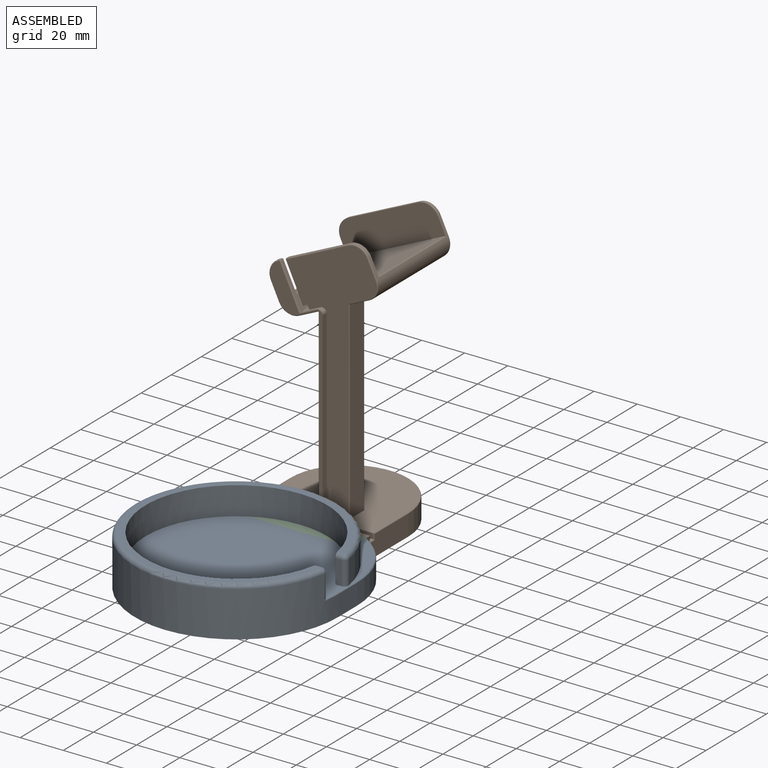
[diagram: assembled view]
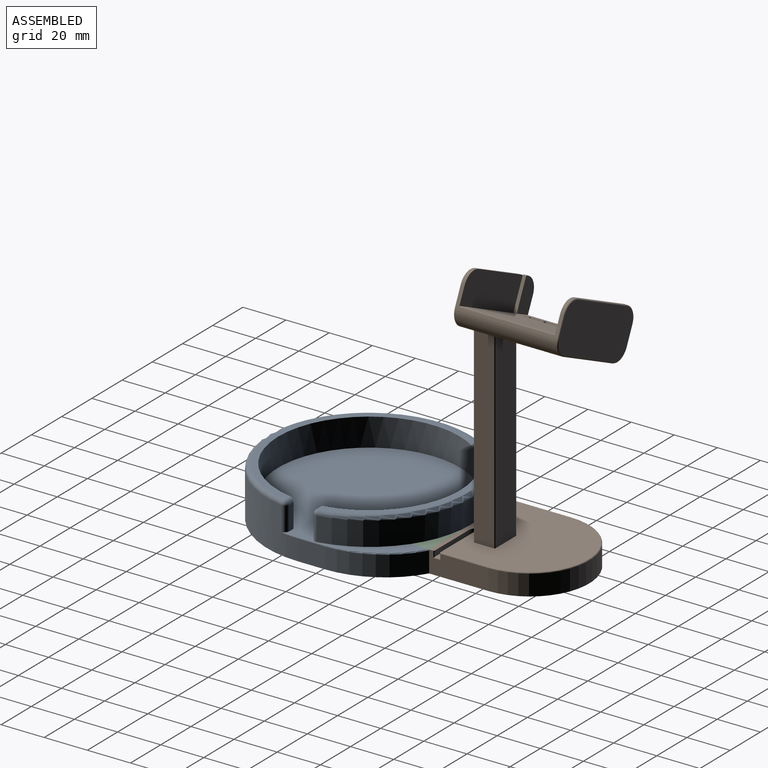
[diagram: assembled view, second angle]
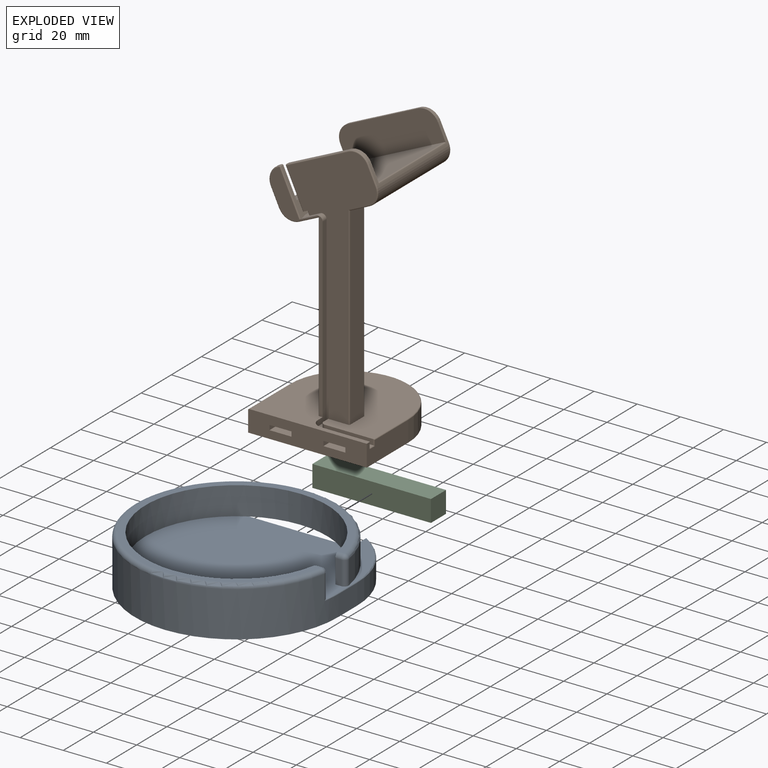
[diagram: exploded view]
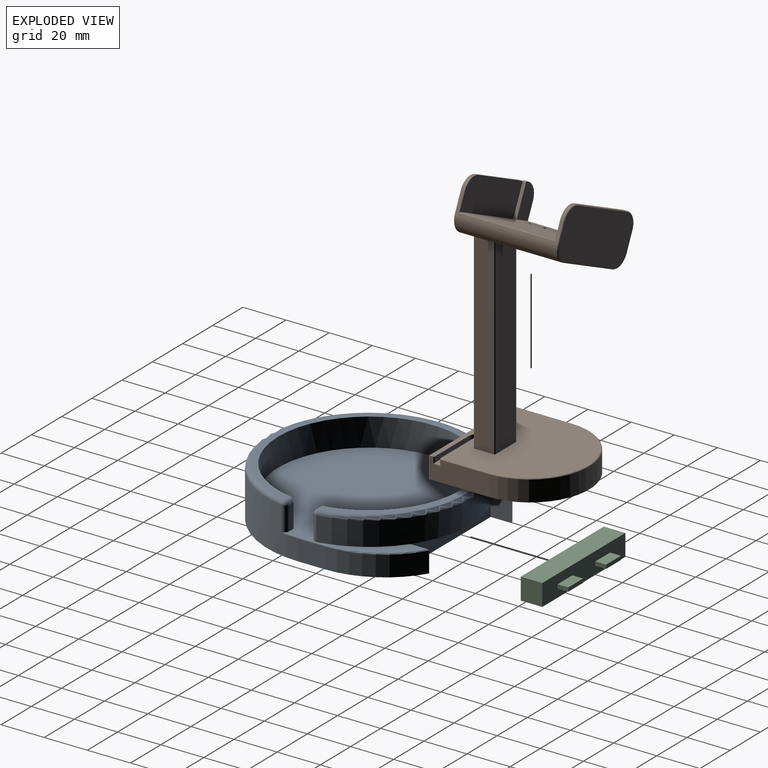
[diagram: exploded view, second angle]
ASSEMBLY  parts=3 mates=2
PART A: 30 faces, bbox 101.7x102.2x23.1 mm
  f0: cylinder r=42.17mm len=84.35mm, axis (0,0,-1), area 3289.9mm2, adj f5,f6,f8,f14,f15,f19,f22
  f1: plane 10x0.05mm, normal (1,0,0), area 0.5mm2, adj f4,f5,f10,f13
  f2: plane 39.64x19.18mm, normal (0,0,1), area 175.6mm2, adj f3,f9,f25,f26
  f3: cylinder r=47.18mm len=94.35mm, axis (0,0,-1), area 4558.3mm2, adj f2,f4,f5,f7,f8,f12,f16,f17
  f4: plane 94.35x94.25mm, normal (0,0,-1), area 6989.5mm2, adj f1,f3,f7,f9,f10,f11,f12,f13
  f5: plane 88.85x88.62mm, normal (0,0,1), area 5678.6mm2, adj f0,f1,f3,f10,f11,f13,f14,f15
  f6: plane 90.35x89.66mm, normal (0,0,1), area 775.7mm2, adj f0,f16,f19,f22
  f7: plane 12.62x9.5mm, normal (-1,0,0), area 119.9mm2, adj f3,f4,f24,f25
  f8: plane 55x10.15mm, normal (0,0,-1), area 261.9mm2, adj f0,f3,f9,f10,f11,f13
  f9: plane 10.12x10.12mm, normal (1,0,0), area 99.9mm2, adj f2,f4,f8,f10,f24,f26
  f10: plane 27.5x10mm, normal (0,1,0), area 275mm2, adj f1,f4,f5,f8,f9
  f11: plane 10.12x10.12mm, normal (-1,0,0), area 99.9mm2, adj f4,f5,f8,f13,f23,f29
  f12: plane 12.57x9.5mm, normal (1,0,0), area 119.4mm2, adj f3,f4,f23,f28
  f13: plane 27.5x10mm, normal (0,1,0), area 275mm2, adj f1,f4,f5,f8,f11
  f14: plane 11x2.72mm, normal (0,1,0), area 29.9mm2, adj f0,f5,f17,f19
  f15: plane 11x2.72mm, normal (0,-1,0), area 29.9mm2, adj f0,f5,f20,f22
  f16: torus R=45.17mm, axis (0,0,-1), area 865.7mm2, adj f3,f6,f18,f21
  f17: cylinder r=2mm len=11.5mm, axis (0,0,-1), area 38.8mm2, adj f3,f5,f14,f18,f27
  f18: sphere r=2mm, area 6.8mm2, adj f16,f17,f19
  f19: cylinder r=2mm len=3.05mm, axis (1,0,0), area 9.1mm2, adj f0,f6,f14,f18
  f20: cylinder r=2mm len=11mm, axis (0,0,-1), area 38.4mm2, adj f3,f5,f15,f21
  f21: sphere r=2mm, area 6.8mm2, adj f16,f20,f22
  f22: cylinder r=2mm len=3.05mm, axis (-1,0,0), area 9.1mm2, adj f0,f6,f15,f21
  f23: cylinder r=40mm len=34.45mm, axis (0,0,1), area 394.4mm2, adj f4,f11,f12,f29
  f24: cylinder r=40mm len=34.45mm, axis (0,0,1), area 394.4mm2, adj f4,f7,f9,f26
  f25: cylinder r=0.5mm len=12.62mm, axis (0,1,0), area 7.2mm2, adj f2,f3,f7,f26
  f26: torus R=39.5mm, axis (0,0,-1), area 32.3mm2, adj f2,f9,f24,f25
  f27: torus R=46.68mm, axis (0,0,-1), area 5.9mm2, adj f3,f5,f17,f28
  f28: cylinder r=0.5mm len=12.57mm, axis (0,-1,0), area 9.9mm2, adj f5,f12,f27,f29
  f29: torus R=39.5mm, axis (0,0,-1), area 32.3mm2, adj f5,f11,f23,f28
PART B: 104 faces, bbox 59.6x58.4x126.2 mm
  f0: plane 114.99x41.84mm, normal (0,-1,0), area 1620.4mm2, adj f4,f50,f57,f58,f76,f77,f80,f81
  f1: plane 99.43x24.38mm, normal (0,-1,0), area 273.3mm2, adj f4,f28,f49,f59,f60,f72,f73,f82
  f2: plane 44.42x44.35mm, normal (-0.42,0,0.91), area 1979.2mm2, adj f3,f16,f17,f19,f20,f22,f24,f25
  f3: cylinder r=1mm len=6.29mm, axis (-0.42,0,0.91), area 9.8mm2, adj f2,f26,f27,f92
  f4: plane 54.5x54.5mm, normal (0,0,1), area 2406.7mm2, adj f0,f1,f7,f8,f9,f13,f14,f28
  f5: plane 27.5x9.5mm, normal (-1,0,0), area 261.3mm2, adj f6,f8,f46,f65
  f6: plane 55x55mm, normal (0,0,-1), area 2700.4mm2, adj f5,f7,f8,f65
  f7: plane 27.5x10mm, normal (1,0,0), area 252.8mm2, adj f4,f6,f8,f44,f45,f47,f48,f65
  f8: plane 55x10mm, normal (0,-1,0), area 505.1mm2, adj f4,f5,f6,f7,f34,f35,f36,f37
  f9: plane 89.77x9mm, normal (1,0,0), area 807.9mm2, adj f4,f10,f54,f57
  f10: plane 47.44x32.72mm, normal (0.42,0,-0.91), area 1552.4mm2, adj f9,f13,f14,f53,f54,f66,f67,f80
  f11: plane 47.34x8.16mm, normal (0.91,0,0.42), area 49.2mm2, adj f19,f22,f51,f55,f58,f66,f68,f70
  f12: plane 47.34x8.16mm, normal (-0.91,0,-0.42), area 49.2mm2, adj f17,f22,f52,f56,f60,f67,f69,f71
  f13: plane 83x9mm, normal (-1,0,0), area 747mm2, adj f4,f10,f53,f59
  f14: plane 89.53x13.5mm, normal (0,1,0), area 1166.1mm2, adj f4,f10,f53,f54
  f15: plane 49.43x36.38mm, normal (0,1,0), area 1041.7mm2, adj f51,f52,f84,f85,f86,f87,f88,f89
  f16: plane 19.48x9.09mm, normal (0.91,0,0.42), area 70.2mm2, adj f2,f17,f27,f49,f75,f93,f94,f100
  f17: plane 17.32x11.42mm, normal (0,1,0), area 111.6mm2, adj f2,f12,f16,f18,f56,f69,f75
  f18: plane 1.5x0.58mm, normal (-0.42,0,0.91), area 1mm2, adj f17,f69,f73,f75
  f19: plane 41.97x27.89mm, normal (0,1,0), area 578.4mm2, adj f2,f11,f20,f21,f55,f68,f79
  f20: plane 19.14x8.93mm, normal (-0.91,0,-0.42), area 63.7mm2, adj f2,f19,f27,f50,f79,f91,f95,f100
  f21: plane 28.78x13.43mm, normal (-0.42,0,0.91), area 47.6mm2, adj f19,f68,f77,f79
  f22: plane 49.56x32.89mm, normal (0,-1,0), area 729.1mm2, adj f2,f11,f12,f23,f55,f56,f70,f71
  f23: plane 32.62x15.22mm, normal (-0.42,0,0.91), area 54mm2, adj f22,f70,f71,f88
  f24: plane 19.7x5.89mm, normal (-0.91,0,-0.42), area 128mm2, adj f2,f27,f61,f62
  f25: plane 7.95x7.17mm, normal (0,-1,0), area 31.7mm2, adj f2,f27,f62,f63
  f26: plane 19.7x5.89mm, normal (0.91,0,0.42), area 128mm2, adj f2,f3,f27,f63
  f27: plane 31.32x6.25mm, normal (-0.42,0,0.91), area 187.8mm2, adj f3,f16,f20,f24,f25,f26,f61,f62
  f28: plane 84.52x5.72mm, normal (1,0,0), area 227.8mm2, adj f1,f4,f29,f33,f96,f99,f103
  f29: cylinder r=4.6mm len=4.6mm, axis (0,0,1), area 18.8mm2, adj f4,f28,f30,f33
  f30: plane 22.35x2.6mm, normal (0,1,0), area 58.1mm2, adj f4,f29,f33,f44
  f31: plane 22.35x2.6mm, normal (0,-1,0), area 58.1mm2, adj f4,f32,f33,f47
  f32: cylinder r=2mm len=2.6mm, axis (0,0,1), area 8.2mm2, adj f4,f31,f33,f97
  f33: plane 26.95x10.12mm, normal (0,0,1), area 85.9mm2, adj f28,f29,f30,f31,f32,f45,f97,f103
  f34: plane 8x2.2mm, normal (1,0,0), area 17.6mm2, adj f8,f35,f37,f38
  f35: plane 10.2x8mm, normal (0,0,1), area 81.6mm2, adj f8,f34,f36,f38
  f36: plane 8x2.2mm, normal (-1,0,0), area 17.6mm2, adj f8,f35,f37,f38
  f37: plane 10.2x8mm, normal (0,0,-1), area 81.6mm2, adj f8,f34,f36,f38
  f38: plane 10.2x2.2mm, normal (0,-1,0), area 22.4mm2, adj f34,f35,f36,f37
  f39: plane 8x2.2mm, normal (1,0,0), area 17.6mm2, adj f8,f40,f42,f43
  f40: plane 10.2x8mm, normal (0,0,1), area 81.6mm2, adj f8,f39,f41,f43
  f41: plane 8x2.2mm, normal (-1,0,0), area 17.6mm2, adj f8,f40,f42,f43
  f42: plane 10.2x8mm, normal (0,0,-1), area 81.6mm2, adj f8,f39,f41,f43
  f43: plane 10.2x2.2mm, normal (0,-1,0), area 22.4mm2, adj f39,f40,f41,f42
  f44: cylinder r=0.5mm len=3.1mm, axis (0,0,1), area 2.2mm2, adj f4,f7,f30,f45
  f45: cylinder r=0.5mm len=3.6mm, axis (0,-1,0), area 2.4mm2, adj f7,f33,f44,f47
  f46: cylinder r=0.5mm len=27.5mm, axis (0,1,0), area 21.6mm2, adj f4,f5,f8,f64
  f47: cylinder r=0.5mm len=3.1mm, axis (0,0,-1), area 2mm2, adj f7,f31,f45,f48
  f48: cylinder r=0.5mm len=22.62mm, axis (0,-1,0), area 17.6mm2, adj f4,f7,f47,f64
  f49: cylinder r=0.5mm len=19.69mm, axis (0.42,0,-0.91), area 16.9mm2, adj f1,f16,f74,f94
  f50: cylinder r=0.5mm len=17.34mm, axis (-0.42,0,0.91), area 14.8mm2, adj f0,f20,f78,f95
  f51: cylinder r=0.5mm len=8.37mm, axis (-0.42,0,0.91), area 7.1mm2, adj f11,f15,f86,f89
  f52: cylinder r=0.5mm len=8.37mm, axis (0.42,0,-0.91), area 7.1mm2, adj f12,f15,f84,f87
  f53: cylinder r=0.5mm len=83.23mm, axis (0,0,-1), area 65.3mm2, adj f4,f10,f13,f14
  f54: cylinder r=0.5mm len=89.77mm, axis (0,0,1), area 70.4mm2, adj f4,f9,f10,f14
  f55: cylinder r=0.5mm len=44.34mm, axis (0,1,0), area 34.8mm2, adj f2,f11,f19,f22
  f56: cylinder r=0.5mm len=44.34mm, axis (0,1,0), area 34.8mm2, adj f2,f12,f17,f22
  f57: cylinder r=0.5mm len=90.08mm, axis (0,0,-1), area 70.6mm2, adj f0,f4,f9,f80
  f58: cylinder r=0.5mm len=8.37mm, axis (0.42,0,-0.91), area 7.1mm2, adj f0,f11,f76,f81
  f59: cylinder r=0.5mm len=83.79mm, axis (0,0,1), area 65.5mm2, adj f1,f4,f13,f82
  f60: cylinder r=0.5mm len=8.37mm, axis (-0.42,0,0.91), area 7.1mm2, adj f1,f12,f72,f83
  f61: cylinder r=1mm len=6.29mm, axis (0.42,0,-0.91), area 9.8mm2, adj f2,f24,f27,f90
  f62: cylinder r=1mm len=6.31mm, axis (-0.42,0,0.91), area 10.2mm2, adj f2,f24,f25,f27
  f63: cylinder r=1mm len=6.31mm, axis (0.42,0,-0.91), area 10.2mm2, adj f2,f25,f26,f27
  f64: torus R=27mm, axis (0,0,1), area 67.4mm2, adj f4,f46,f48,f65
  f65: cylinder r=27.5mm len=55mm, axis (0,0,-1), area 820.7mm2, adj f5,f6,f7,f64
  f66: cylinder r=7mm len=47.34mm, axis (0,-1,0), area 520.5mm2, adj f10,f11,f81,f86
  f67: cylinder r=7mm len=47.34mm, axis (0,-1,0), area 520.5mm2, adj f10,f12,f83,f84
  f68: cylinder r=7mm len=9.3mm, axis (0,1,0), area 16.5mm2, adj f11,f19,f21,f76
  f69: cylinder r=7mm len=9.3mm, axis (0,1,0), area 16.5mm2, adj f12,f17,f18,f72
  f70: cylinder r=7mm len=9.3mm, axis (0,1,0), area 16.5mm2, adj f11,f22,f23,f89
  f71: cylinder r=7mm len=9.3mm, axis (0,1,0), area 16.5mm2, adj f12,f22,f23,f87
  f72: torus R=6.5mm, axis (0,-1,0), area 8.4mm2, adj f1,f60,f69,f73
  f73: cylinder r=0.5mm len=0.79mm, axis (0.91,0,0.42), area 0.5mm2, adj f1,f18,f72,f74
  f74: sphere r=0.5mm, area 0.4mm2, adj f49,f73,f75
  f75: cylinder r=0.5mm len=1.5mm, axis (0,-1,0), area 1.2mm2, adj f16,f17,f18,f74
  f76: torus R=6.5mm, axis (0,-1,0), area 8.4mm2, adj f0,f58,f68,f77
  f77: cylinder r=0.5mm len=28.99mm, axis (0.91,0,0.42), area 24.9mm2, adj f0,f21,f76,f78
  f78: sphere r=0.5mm, area 0.4mm2, adj f50,f77,f79
  f79: cylinder r=0.5mm len=1.5mm, axis (0,1,0), area 1.2mm2, adj f19,f20,f21,f78
  f80: cylinder r=0.5mm len=9.56mm, axis (-0.91,0,-0.42), area 8mm2, adj f0,f10,f57,f81
  f81: torus R=6.5mm, axis (0,-1,0), area 8.4mm2, adj f0,f58,f66,f80
  f82: cylinder r=0.5mm len=9.98mm, axis (0.91,0,0.42), area 8.2mm2, adj f1,f10,f59,f83
  f83: torus R=6.5mm, axis (0,-1,0), area 8.4mm2, adj f1,f60,f67,f82
  f84: torus R=6.5mm, axis (0,-1,0), area 8.4mm2, adj f15,f52,f67,f85
  f85: cylinder r=0.5mm len=32.83mm, axis (0.91,0,0.42), area 28.3mm2, adj f10,f15,f84,f86
  f86: torus R=6.5mm, axis (0,-1,0), area 8.4mm2, adj f15,f51,f66,f85
  f87: torus R=6.5mm, axis (0,-1,0), area 8.4mm2, adj f15,f52,f71,f88
  f88: cylinder r=0.5mm len=32.83mm, axis (-0.91,0,-0.42), area 28.3mm2, adj f15,f23,f87,f89
  f89: torus R=6.5mm, axis (0,-1,0), area 8.4mm2, adj f15,f51,f70,f88
  f90: plane 6x5.89mm, normal (-0.91,0,-0.42), area 39mm2, adj f2,f27,f61,f91
  f91: plane 6.4x3.84mm, normal (0,1,0), area 7.8mm2, adj f2,f20,f27,f90
  f92: plane 6x5.89mm, normal (0.91,0,0.42), area 39mm2, adj f2,f3,f27,f93
  f93: plane 6.4x3.84mm, normal (0,1,0), area 7.8mm2, adj f2,f16,f27,f92
  f94: plane 8.11x3.79mm, normal (-0.42,0,0.91), area 21mm2, adj f1,f16,f49,f96,f99,f100,f101,f102
  f95: plane 5.3x3.1mm, normal (0.42,0,-0.91), area 15.2mm2, adj f0,f20,f50,f98,f99,f101
  f96: cylinder r=2mm len=2.85mm, axis (0,-1,0), area 10.4mm2, adj f1,f28,f94,f99
  f97: plane 84.52x5.72mm, normal (-1,0,0), area 227.8mm2, adj f0,f4,f32,f33,f98,f99,f103
  f98: cylinder r=4.6mm len=6.55mm, axis (0,-1,0), area 24mm2, adj f0,f95,f97,f99
  f99: plane 88.92x11.4mm, normal (0,-1,0), area 250.4mm2, adj f28,f94,f95,f96,f97,f98,f101,f103
  f100: cylinder r=5mm len=2.57mm, axis (0.91,0,0.42), area 4.8mm2, adj f16,f20,f27,f94,f101,f102
  f101: cylinder r=0.5mm len=2.57mm, axis (-0.42,0,0.91), area 1.9mm2, adj f20,f94,f95,f99,f100,f102
  f102: bspline ~2.77x1.61mm, area 0.8mm2, adj f94,f100,f101
  f103: plane 2.6x0.2mm, normal (0,-0.71,0.71), area 0.7mm2, adj f28,f33,f97,f99
PART C: 16 faces, bbox 55x15x10 mm
  f0: plane 55x10mm, normal (0,0,1), area 550mm2, adj f1,f3,f4,f5
  f1: plane 10x10mm, normal (-1,0,0), area 100mm2, adj f0,f2,f4,f5
  f2: plane 55x10mm, normal (0,0,-1), area 550mm2, adj f1,f3,f4,f5
  f3: plane 10x10mm, normal (1,0,0), area 100mm2, adj f0,f2,f4,f5
  f4: plane 55x10mm, normal (0,-1,0), area 550mm2, adj f0,f1,f2,f3
  f5: plane 55x10mm, normal (0,1,0), area 514.7mm2, adj f0,f1,f2,f3,f6,f7,f8,f9
  f6: plane 5x1.8mm, normal (-1,0,0), area 9mm2, adj f5,f7,f9,f10
  f7: plane 9.8x5mm, normal (0,0,-1), area 49mm2, adj f5,f6,f8,f10
  f8: plane 5x1.8mm, normal (1,0,0), area 9mm2, adj f5,f7,f9,f10
  f9: plane 9.8x5mm, normal (0,0,1), area 49mm2, adj f5,f6,f8,f10
  f10: plane 9.8x1.8mm, normal (0,1,0), area 17.6mm2, adj f6,f7,f8,f9
  f11: plane 5x1.8mm, normal (-1,0,0), area 9mm2, adj f5,f12,f14,f15
  f12: plane 9.8x5mm, normal (0,0,-1), area 49mm2, adj f5,f11,f13,f15
  f13: plane 5x1.8mm, normal (1,0,0), area 9mm2, adj f5,f12,f14,f15
  f14: plane 9.8x5mm, normal (0,0,1), area 49mm2, adj f5,f11,f13,f15
  f15: plane 9.8x1.8mm, normal (0,1,0), area 17.6mm2, adj f11,f12,f13,f14
PLACE A t=(-86.3,-107.78,-25.37)mm
PLACE B t=(-88.31,-45.75,20.48)mm
PLACE C t=(-86.24,-60.75,-73.45)mm
MATE parallel C.f5 <-> B.f8  axis (0,1,0) through (-86.3,-60.75,-30.36)mm
MATE parallel A.f11 <-> C.f3  axis (-1,0,0) through (-58.8,-65.75,-30.37)mm
